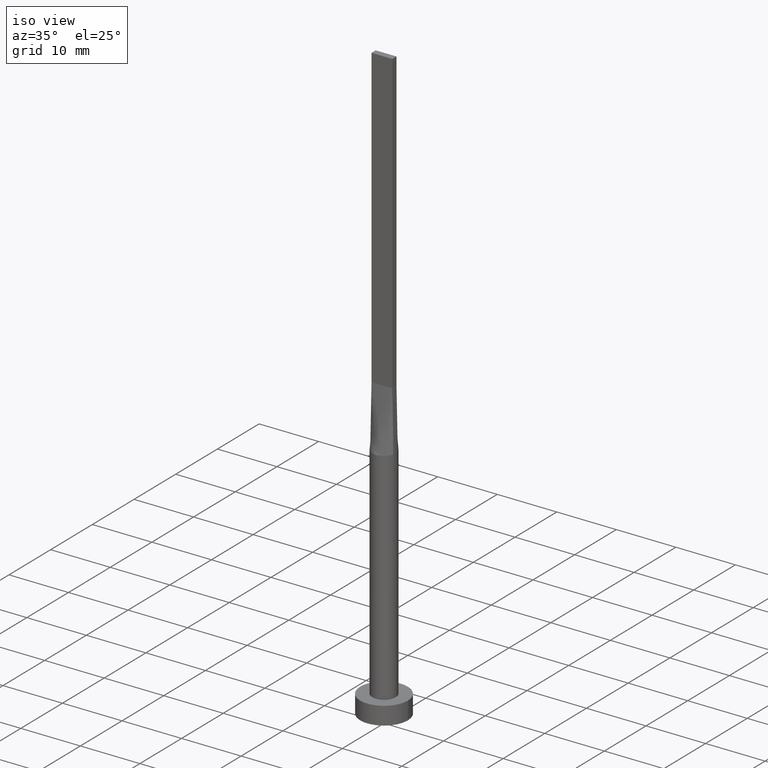
[diagram: clean part render]
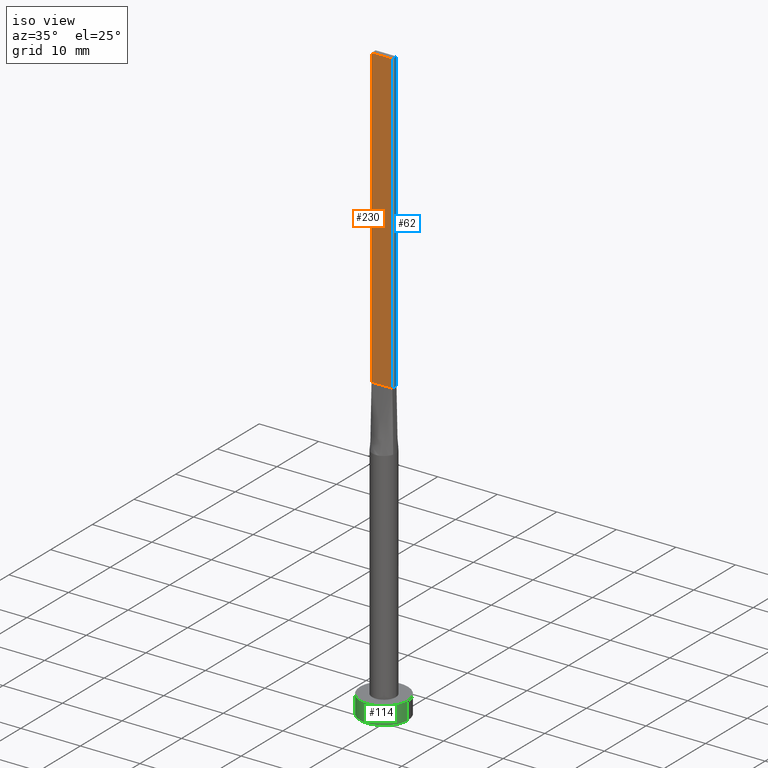
[diagram: same view with three faces highlighted in distinct colors, each labeled with its STEP entity id]
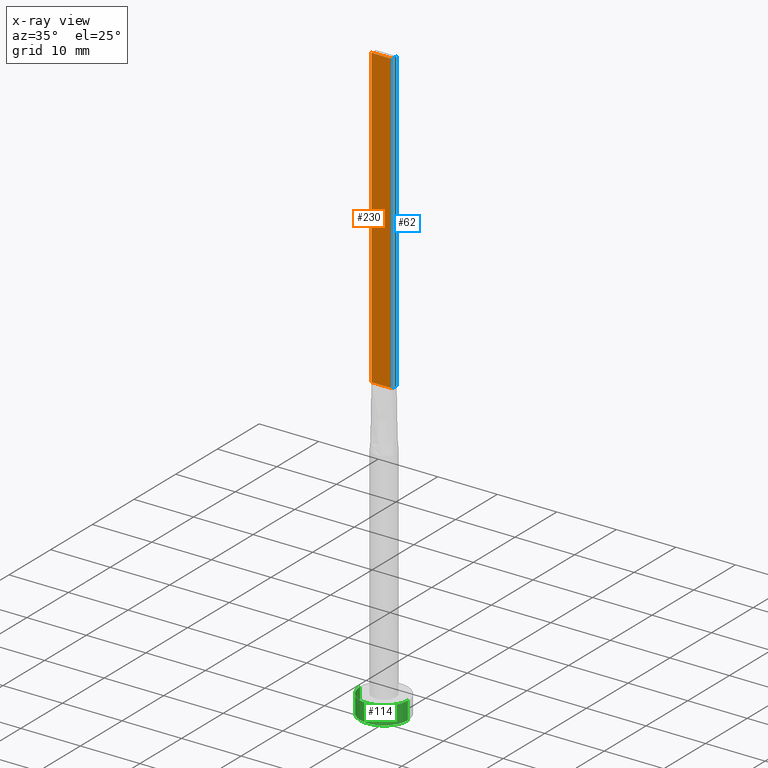
[diagram: x-ray of the same camera — body ghosted, the three highlighted faces saturated]
A machine part, iso view with three faces highlighted in distinct colors.
The next image is the same camera in x-ray (body ghosted, the three faces saturated) — at least one of them is partly hidden behind the body in this view.
Their STEP definitions:

[orange] entity #230 — the highlighted planar face has unit normal (0, 1, -0).
#2 = CARTESIAN_POINT ( 'NONE',  ( -1.750000000000000000, -0.4999999999999995559, 100.0000000000000000 ) ) ;
#15 = EDGE_CURVE ( 'NONE', #76, #77, #482, .T. ) ;
#24 = ORIENTED_EDGE ( 'NONE', *, *, #15, .T. ) ;
#36 = CARTESIAN_POINT ( 'NONE',  ( -1.750000000000000000, -0.4999999999999995559, 100.0000000000000000 ) ) ;
#42 = VECTOR ( 'NONE', #357, 1000.000000000000000 ) ;
#45 = VECTOR ( 'NONE', #71, 1000.000000000000000 ) ;
#63 = CARTESIAN_POINT ( 'NONE',  ( -1.750000000000000000, -0.4999999999999995559, 100.0000000000000000 ) ) ;
#71 = DIRECTION ( 'NONE',  ( -0.000000000000000000, -0.000000000000000000, -1.000000000000000000 ) ) ;
#76 = VERTEX_POINT ( 'NONE', #408 ) ;
#77 = VERTEX_POINT ( 'NONE', #151 ) ;
#82 = CARTESIAN_POINT ( 'NONE',  ( 1.750000000000000000, -0.4999999999999997780, 100.0000000000000000 ) ) ;
#87 = DIRECTION ( 'NONE',  ( -1.000000000000000000, 6.195440985631454085E-17, 0.000000000000000000 ) ) ;
#126 = EDGE_CURVE ( 'NONE', #384, #76, #211, .T. ) ;
#127 = DIRECTION ( 'NONE',  ( 1.000000000000000000, -6.195440985631454085E-17, 0.000000000000000000 ) ) ;
#151 = CARTESIAN_POINT ( 'NONE',  ( 1.750000000000000000, -0.4999999999999997780, 50.00000000000000000 ) ) ;
#211 = LINE ( 'NONE', #2, #399 ) ;
#214 = DIRECTION ( 'NONE',  ( 6.195440985631454085E-17, 1.000000000000000000, -0.000000000000000000 ) ) ;
#230 = ADVANCED_FACE ( 'NONE', ( #535 ), #581, .F. ) ;
#254 = CARTESIAN_POINT ( 'NONE',  ( -1.750000000000000000, -0.4999999999999995559, 50.00000000000000000 ) ) ;
#282 = ORIENTED_EDGE ( 'NONE', *, *, #126, .T. ) ;
#293 = ORIENTED_EDGE ( 'NONE', *, *, #507, .F. ) ;
#323 = ORIENTED_EDGE ( 'NONE', *, *, #475, .F. ) ;
#339 = VECTOR ( 'NONE', #127, 1000.000000000000000 ) ;
#353 = AXIS2_PLACEMENT_3D ( 'NONE', #36, #214, #87 ) ;
#357 = DIRECTION ( 'NONE',  ( 1.000000000000000000, -6.195440985631454085E-17, 0.000000000000000000 ) ) ;
#382 = LINE ( 'NONE', #479, #45 ) ;
#384 = VERTEX_POINT ( 'NONE', #423 ) ;
#399 = VECTOR ( 'NONE', #451, 1000.000000000000000 ) ;
#408 = CARTESIAN_POINT ( 'NONE',  ( -1.750000000000000000, -0.4999999999999995559, 50.00000000000000000 ) ) ;
#423 = CARTESIAN_POINT ( 'NONE',  ( -1.750000000000000000, -0.4999999999999995559, 100.0000000000000000 ) ) ;
#451 = DIRECTION ( 'NONE',  ( -0.000000000000000000, -0.000000000000000000, -1.000000000000000000 ) ) ;
#475 = EDGE_CURVE ( 'NONE', #384, #523, #516, .T. ) ;
#479 = CARTESIAN_POINT ( 'NONE',  ( 1.750000000000000000, -0.4999999999999997780, 100.0000000000000000 ) ) ;
#481 = EDGE_LOOP ( 'NONE', ( #24, #293, #323, #282 ) ) ;
#482 = LINE ( 'NONE', #254, #42 ) ;
#507 = EDGE_CURVE ( 'NONE', #523, #77, #382, .T. ) ;
#516 = LINE ( 'NONE', #63, #339 ) ;
#523 = VERTEX_POINT ( 'NONE', #82 ) ;
#535 = FACE_OUTER_BOUND ( 'NONE', #481, .T. ) ;
#581 = PLANE ( 'NONE',  #353 ) ;

[blue] entity #62 — the highlighted planar face has unit normal (-1, -0, 0).
#5 = CARTESIAN_POINT ( 'NONE',  ( 1.749999999999999778, 0.5000000000000002220, 100.0000000000000000 ) ) ;
#11 = ORIENTED_EDGE ( 'NONE', *, *, #225, .T. ) ;
#45 = VECTOR ( 'NONE', #71, 1000.000000000000000 ) ;
#54 = VERTEX_POINT ( 'NONE', #569 ) ;
#62 = ADVANCED_FACE ( 'NONE', ( #491 ), #531, .F. ) ;
#71 = DIRECTION ( 'NONE',  ( -0.000000000000000000, -0.000000000000000000, -1.000000000000000000 ) ) ;
#77 = VERTEX_POINT ( 'NONE', #151 ) ;
#82 = CARTESIAN_POINT ( 'NONE',  ( 1.750000000000000000, -0.4999999999999997780, 100.0000000000000000 ) ) ;
#103 = CARTESIAN_POINT ( 'NONE',  ( 1.749999999999999778, 0.5000000000000002220, 50.00000000000000000 ) ) ;
#110 = ORIENTED_EDGE ( 'NONE', *, *, #309, .F. ) ;
#134 = ORIENTED_EDGE ( 'NONE', *, *, #507, .T. ) ;
#151 = CARTESIAN_POINT ( 'NONE',  ( 1.750000000000000000, -0.4999999999999997780, 50.00000000000000000 ) ) ;
#155 = EDGE_CURVE ( 'NONE', #54, #469, #355, .T. ) ;
#158 = VECTOR ( 'NONE', #420, 1000.000000000000000 ) ;
#184 = DIRECTION ( 'NONE',  ( -0.000000000000000000, -0.000000000000000000, -1.000000000000000000 ) ) ;
#225 = EDGE_CURVE ( 'NONE', #77, #469, #566, .T. ) ;
#288 = CARTESIAN_POINT ( 'NONE',  ( 1.750000000000000000, -0.4999999999999997780, 100.0000000000000000 ) ) ;
#309 = EDGE_CURVE ( 'NONE', #523, #54, #517, .T. ) ;
#328 = ORIENTED_EDGE ( 'NONE', *, *, #155, .F. ) ;
#355 = LINE ( 'NONE', #5, #550 ) ;
#382 = LINE ( 'NONE', #479, #45 ) ;
#400 = DIRECTION ( 'NONE',  ( -1.000000000000000000, -2.168404344971008868E-16, 0.000000000000000000 ) ) ;
#420 = DIRECTION ( 'NONE',  ( -2.168404344971008868E-16, 1.000000000000000000, 0.000000000000000000 ) ) ;
#425 = CARTESIAN_POINT ( 'NONE',  ( 1.749999999999999778, 0.5000000000000002220, 50.00000000000000000 ) ) ;
#453 = DIRECTION ( 'NONE',  ( 2.168404344971008868E-16, -1.000000000000000000, 0.000000000000000000 ) ) ;
#469 = VERTEX_POINT ( 'NONE', #103 ) ;
#474 = VECTOR ( 'NONE', #476, 1000.000000000000000 ) ;
#476 = DIRECTION ( 'NONE',  ( -2.168404344971008868E-16, 1.000000000000000000, -0.000000000000000000 ) ) ;
#479 = CARTESIAN_POINT ( 'NONE',  ( 1.750000000000000000, -0.4999999999999997780, 100.0000000000000000 ) ) ;
#491 = FACE_OUTER_BOUND ( 'NONE', #556, .T. ) ;
#507 = EDGE_CURVE ( 'NONE', #523, #77, #382, .T. ) ;
#517 = LINE ( 'NONE', #288, #158 ) ;
#523 = VERTEX_POINT ( 'NONE', #82 ) ;
#528 = CARTESIAN_POINT ( 'NONE',  ( 1.750000000000000000, -0.4999999999999997780, 100.0000000000000000 ) ) ;
#531 = PLANE ( 'NONE',  #574 ) ;
#550 = VECTOR ( 'NONE', #184, 1000.000000000000000 ) ;
#556 = EDGE_LOOP ( 'NONE', ( #11, #328, #110, #134 ) ) ;
#566 = LINE ( 'NONE', #425, #474 ) ;
#569 = CARTESIAN_POINT ( 'NONE',  ( 1.749999999999999778, 0.5000000000000002220, 100.0000000000000000 ) ) ;
#574 = AXIS2_PLACEMENT_3D ( 'NONE', #528, #400, #453 ) ;

[green] entity #114 — the highlighted cylindrical surface (edge-blend (fillet) strip) has radius 4 mm, axis along (-0, -0, -1).
#29 = DIRECTION ( 'NONE',  ( -0.000000000000000000, -0.000000000000000000, -1.000000000000000000 ) ) ;
#41 = CARTESIAN_POINT ( 'NONE',  ( -4.000000000000000000, 0.000000000000000000, 0.000000000000000000 ) ) ;
#57 = ORIENTED_EDGE ( 'NONE', *, *, #265, .T. ) ;
#69 = VERTEX_POINT ( 'NONE', #579 ) ;
#88 = DIRECTION ( 'NONE',  ( 1.000000000000000000, 0.000000000000000000, 0.000000000000000000 ) ) ;
#96 = VERTEX_POINT ( 'NONE', #501 ) ;
#102 = DIRECTION ( 'NONE',  ( -0.000000000000000000, -0.000000000000000000, -1.000000000000000000 ) ) ;
#114 = ADVANCED_FACE ( 'NONE', ( #418 ), #152, .T. ) ;
#125 = DIRECTION ( 'NONE',  ( 1.000000000000000000, 0.000000000000000000, 0.000000000000000000 ) ) ;
#143 = EDGE_CURVE ( 'NONE', #228, #285, #564, .T. ) ;
#146 = AXIS2_PLACEMENT_3D ( 'NONE', #274, #470, #456 ) ;
#152 = CYLINDRICAL_SURFACE ( 'NONE', #146, 4.000000000000000000 ) ;
#161 = CARTESIAN_POINT ( 'NONE',  ( 4.000000000000000000, 4.898587196589412829E-16, 0.000000000000000000 ) ) ;
#186 = AXIS2_PLACEMENT_3D ( 'NONE', #348, #530, #125 ) ;
#222 = CARTESIAN_POINT ( 'NONE',  ( 0.000000000000000000, 0.000000000000000000, 0.000000000000000000 ) ) ;
#228 = VERTEX_POINT ( 'NONE', #41 ) ;
#256 = LINE ( 'NONE', #443, #568 ) ;
#265 = EDGE_CURVE ( 'NONE', #96, #228, #256, .T. ) ;
#274 = CARTESIAN_POINT ( 'NONE',  ( 0.000000000000000000, 0.000000000000000000, 3.000000000000000000 ) ) ;
#283 = EDGE_CURVE ( 'NONE', #96, #69, #296, .T. ) ;
#285 = VERTEX_POINT ( 'NONE', #161 ) ;
#290 = ORIENTED_EDGE ( 'NONE', *, *, #143, .T. ) ;
#296 = CIRCLE ( 'NONE', #186, 4.000000000000000000 ) ;
#324 = VECTOR ( 'NONE', #102, 1000.000000000000000 ) ;
#326 = EDGE_CURVE ( 'NONE', #69, #285, #379, .T. ) ;
#329 = ORIENTED_EDGE ( 'NONE', *, *, #326, .F. ) ;
#348 = CARTESIAN_POINT ( 'NONE',  ( 0.000000000000000000, 0.000000000000000000, 3.000000000000000000 ) ) ;
#379 = LINE ( 'NONE', #513, #324 ) ;
#398 = AXIS2_PLACEMENT_3D ( 'NONE', #222, #405, #88 ) ;
#405 = DIRECTION ( 'NONE',  ( 0.000000000000000000, 0.000000000000000000, 1.000000000000000000 ) ) ;
#418 = FACE_OUTER_BOUND ( 'NONE', #466, .T. ) ;
#429 = ORIENTED_EDGE ( 'NONE', *, *, #283, .F. ) ;
#443 = CARTESIAN_POINT ( 'NONE',  ( -4.000000000000000000, 0.000000000000000000, 3.000000000000000000 ) ) ;
#456 = DIRECTION ( 'NONE',  ( -1.000000000000000000, 0.000000000000000000, 0.000000000000000000 ) ) ;
#466 = EDGE_LOOP ( 'NONE', ( #329, #429, #57, #290 ) ) ;
#470 = DIRECTION ( 'NONE',  ( -0.000000000000000000, -0.000000000000000000, -1.000000000000000000 ) ) ;
#501 = CARTESIAN_POINT ( 'NONE',  ( -4.000000000000000000, 0.000000000000000000, 3.000000000000000000 ) ) ;
#513 = CARTESIAN_POINT ( 'NONE',  ( 4.000000000000000000, 4.898587196589412829E-16, 3.000000000000000000 ) ) ;
#530 = DIRECTION ( 'NONE',  ( 0.000000000000000000, 0.000000000000000000, 1.000000000000000000 ) ) ;
#564 = CIRCLE ( 'NONE', #398, 4.000000000000000000 ) ;
#568 = VECTOR ( 'NONE', #29, 1000.000000000000000 ) ;
#579 = CARTESIAN_POINT ( 'NONE',  ( 4.000000000000000000, 4.898587196589412829E-16, 3.000000000000000000 ) ) ;